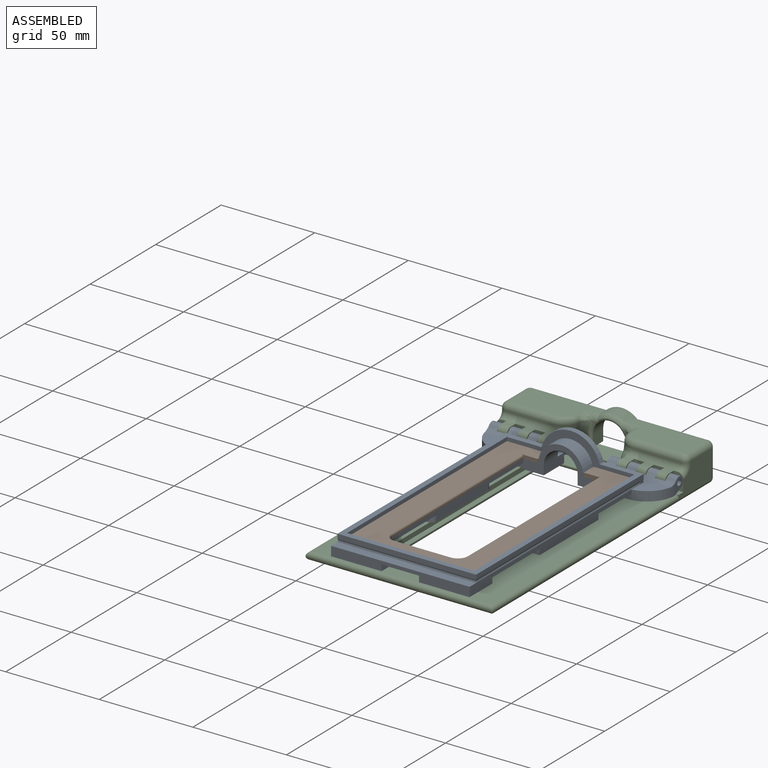
[diagram: assembled view]
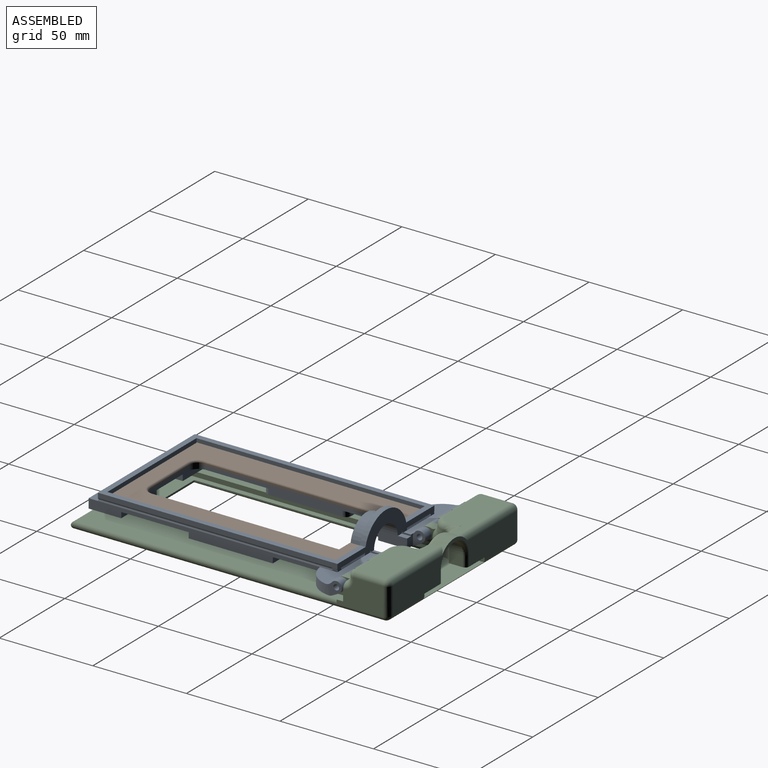
[diagram: assembled view, second angle]
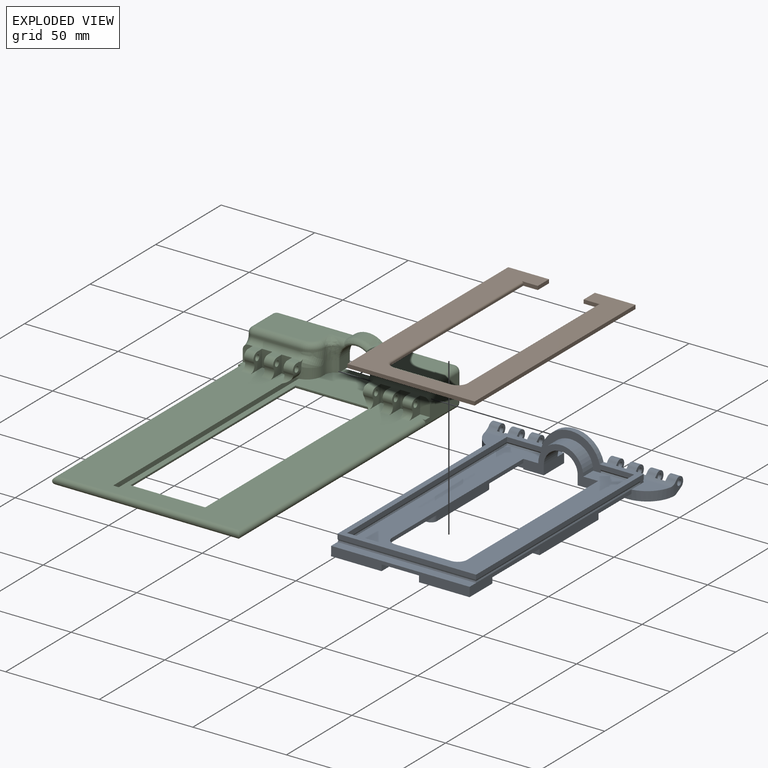
[diagram: exploded view]
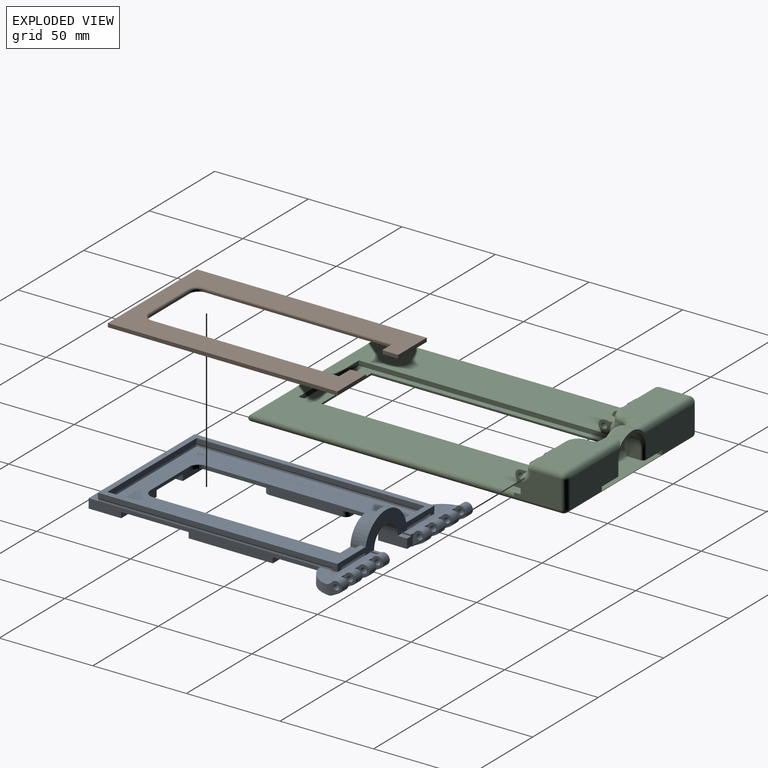
[diagram: exploded view, second angle]
ASSEMBLY  parts=3 mates=2
PART A: 151 faces, bbox 100x144.4x21.1 mm
  f0: plane 37.6x11.62mm, normal (0,0,1), area 161.3mm2, adj f13,f17,f27,f50,f80,f119,f143
  f1: cylinder r=16.05mm len=31.09mm, axis (0,1,0), area 127mm2, adj f114,f119,f127
  f2: cylinder r=16.05mm len=1.5mm, axis (0,1,0), area 0.4mm2, adj f119,f143,f144
  f3: plane 0.75x0.5mm, normal (0.95,0,-0.32), area 0.2mm2, adj f4,f119,f148
  f4: plane 0.75x0.5mm, normal (0.95,0,0.32), area 0.2mm2, adj f3,f119,f147
  f5: plane 0.75x0.5mm, normal (-0.95,0,-0.32), area 0.2mm2, adj f6,f119,f144
  f6: plane 0.75x0.5mm, normal (-0.95,0,0.32), area 0.2mm2, adj f5,f119,f143
  f7: plane 37.6x11.62mm, normal (0,0,1), area 161.3mm2, adj f14,f26,f33,f81,f119,f141
  f8: plane 122x68mm, normal (0,0,1), area 3925.6mm2, adj f18,f21,f29,f56,f63,f64,f65,f120
  f9: cylinder r=16.05mm len=1.5mm, axis (0,1,0), area 0.4mm2, adj f127,f139,f140
  f10: cylinder r=16.05mm len=1.5mm, axis (0,1,0), area 0.4mm2, adj f127,f145,f146
  f11: plane 122x2.5mm, normal (-1,0,0), area 305mm2, adj f20,f22,f114,f127
  f12: plane 122x2.5mm, normal (1,0,0), area 305mm2, adj f19,f22,f114,f127
  f13: plane 128x4mm, normal (1,0,0), area 323.7mm2, adj f0,f16,f23,f114,f119,f147,f148,f149
  f14: plane 128x0.75mm, normal (-0.95,0,0.32), area 101.1mm2, adj f7,f15,f57,f119,f129
  f15: plane 128x0.75mm, normal (-0.95,0,-0.32), area 101.1mm2, adj f14,f25,f119,f128
  f16: plane 125.5x0.75mm, normal (0.95,0,-0.32), area 98.9mm2, adj f13,f17,f128,f149
  f17: plane 125.5x0.75mm, normal (0.95,0,0.32), area 98.9mm2, adj f0,f16,f24,f129,f150
  f18: plane 125.25x0.75mm, normal (0.95,0,0.32), area 99mm2, adj f8,f19,f119,f133,f134,f138
  f19: plane 125.25x0.75mm, normal (0.95,0,-0.32), area 99mm2, adj f12,f18,f119,f132,f133,f138
  f20: plane 122.75x0.75mm, normal (-0.95,0,-0.32), area 96.8mm2, adj f11,f21,f136,f137,f146
  f21: plane 122.75x0.75mm, normal (-0.95,0,0.32), area 96.8mm2, adj f8,f20,f135,f136,f145
  f22: plane 68x2.5mm, normal (0,1,0), area 170mm2, adj f11,f12,f114,f130
  f23: plane 74x2.5mm, normal (0,-1,0), area 185mm2, adj f13,f25,f114,f128
  f24: plane 123.54x5mm, normal (1,0,0), area 434.3mm2, adj f17,f34,f52,f53,f60,f65,f66,f67
  f25: plane 128x2.5mm, normal (-1,0,0), area 320mm2, adj f15,f23,f114,f119
  f26: cylinder r=12.05mm len=5mm, axis (0,-1,0), area 3mm2, adj f7,f33,f116,f119
  f27: cylinder r=12.05mm len=5mm, axis (0,-1,0), area 3mm2, adj f0,f50,f117,f119
  f28: plane 5.76x4.45mm, normal (0,1,0), area 23.2mm2, adj f31,f50,f94,f113,f117,f118
  f29: cylinder r=12.05mm len=24.1mm, axis (0,-1,0), area 283.9mm2, adj f8,f63,f127
  f30: plane 40.9x14.75mm, normal (0,0,-1), area 525.8mm2, adj f31,f63,f68,f69,f80,f113
  f31: cylinder r=5mm len=40.95mm, axis (-1,0,0), area 64.7mm2, adj f28,f30,f39,f40,f41,f58,f79,f80
  f32: plane 5.76x4.45mm, normal (0,1,0), area 23.2mm2, adj f33,f51,f95,f112,f115,f116
  f33: cylinder r=5mm len=37.98mm, axis (-1,0,0), area 141.1mm2, adj f7,f26,f32,f43,f44,f45,f46,f78
  f34: plane 74x4.91mm, normal (0,0,1), area 363.6mm2, adj f24,f57,f60,f129
  f35: plane 5x3.31mm, normal (0,0.47,-0.88), area 18.8mm2, adj f43,f51,f78,f102
  f36: plane 5x3.31mm, normal (0,0.47,-0.88), area 18.8mm2, adj f44,f51,f101,f104
  f37: plane 5x3.31mm, normal (0,0.47,-0.88), area 18.8mm2, adj f45,f51,f98,f99
  f38: plane 5x3.31mm, normal (0,0.47,-0.88), area 18.8mm2, adj f46,f51,f95,f96
  f39: plane 5x3.31mm, normal (0,0.47,-0.88), area 18.8mm2, adj f31,f47,f93,f94
  f40: plane 5x3.31mm, normal (0,0.47,-0.88), area 18.8mm2, adj f31,f48,f90,f91
  f41: plane 5x3.31mm, normal (0,0.47,-0.88), area 18.8mm2, adj f31,f49,f87,f88
  f42: cylinder r=1.5mm len=5mm, axis (-1,0,0), area 47.1mm2, adj f78,f102
  f43: cylinder r=3mm len=5.65mm, axis (-1,0,0), area 53.2mm2, adj f33,f35,f78,f102
  f44: cylinder r=3mm len=5.65mm, axis (-1,0,0), area 53.2mm2, adj f33,f36,f101,f104
  f45: cylinder r=3mm len=5.65mm, axis (-1,0,0), area 53.2mm2, adj f33,f37,f98,f99
  f46: cylinder r=3mm len=5.65mm, axis (-1,0,0), area 53.2mm2, adj f33,f38,f95,f96
  f47: cylinder r=3mm len=5.65mm, axis (-1,0,0), area 53.2mm2, adj f39,f50,f93,f94
  f48: cylinder r=3mm len=5.65mm, axis (-1,0,0), area 53.2mm2, adj f40,f50,f90,f91
  f49: cylinder r=3mm len=5.65mm, axis (-1,0,0), area 53.2mm2, adj f41,f50,f87,f88
  f50: cylinder r=5mm len=37.98mm, axis (-1,0,0), area 141.1mm2, adj f0,f27,f28,f47,f48,f49,f62,f79
  f51: cylinder r=5mm len=40.95mm, axis (-1,0,0), area 64.7mm2, adj f32,f35,f36,f37,f38,f55,f78,f81
  f52: plane 27x17.41mm, normal (0,0,-1), area 470mm2, adj f24,f60,f65,f83
  f53: plane 45x17mm, normal (0,0,-1), area 761.1mm2, adj f24,f64,f67,f70,f122,f123
  f54: plane 27x17.41mm, normal (0,0,-1), area 470mm2, adj f57,f60,f65,f82
  f55: plane 40.9x14.75mm, normal (0,0,-1), area 525.8mm2, adj f51,f63,f72,f73,f81,f112
  f56: plane 100x5mm, normal (1,0,0), area 317mm2, adj f8,f59,f63,f75,f77,f121,f124,f125
  f57: plane 123.54x5mm, normal (-1,0,0), area 434.3mm2, adj f14,f34,f54,f59,f60,f65,f74,f75
  f58: plane 5x3.31mm, normal (0,0.47,-0.88), area 18.8mm2, adj f31,f62,f79,f85
  f59: plane 45x17mm, normal (0,0,-1), area 761.1mm2, adj f56,f57,f74,f76,f124,f125
  f60: plane 74x5mm, normal (0,-1,0), area 305mm2, adj f24,f34,f52,f54,f57,f82,f83,f84
  f61: cylinder r=1.5mm len=5mm, axis (-1,0,0), area 47.1mm2, adj f79,f85
  f62: cylinder r=3mm len=5.65mm, axis (-1,0,0), area 53.2mm2, adj f50,f58,f79,f85
  f63: plane 40x17.05mm, normal (0,-1,0), area 208.9mm2, adj f8,f29,f30,f55,f56,f64,f68,f72
  f64: plane 100x5mm, normal (-1,0,0), area 317mm2, adj f8,f53,f63,f66,f71,f120,f122,f123
  f65: plane 74x5mm, normal (0,1,0), area 217mm2, adj f8,f24,f52,f54,f57,f66,f77,f82
  f66: plane 39x22mm, normal (0,0,-1), area 619.3mm2, adj f24,f64,f65,f67,f120,f123
  f67: plane 14x3mm, normal (0,-1,0), area 42mm2, adj f24,f53,f66,f123
  f68: plane 3x1mm, normal (1,0,0), area 3mm2, adj f30,f63,f69,f71
  f69: plane 15x3mm, normal (0,-1,0), area 45mm2, adj f30,f68,f71,f80
  f70: plane 14x3mm, normal (0,1,0), area 42mm2, adj f24,f53,f71,f122
  f71: plane 28.13x17mm, normal (0,0,-1), area 427mm2, adj f24,f64,f68,f69,f70,f80,f122
  f72: plane 3x1mm, normal (-1,0,0), area 3mm2, adj f55,f63,f73,f75
  f73: plane 15x3mm, normal (0,-1,0), area 45mm2, adj f55,f72,f75,f81
  f74: plane 14x3mm, normal (0,1,0), area 42mm2, adj f57,f59,f75,f125
  f75: plane 28.13x17mm, normal (0,0,-1), area 427mm2, adj f56,f57,f72,f73,f74,f81,f125
  f76: plane 14x3mm, normal (0,-1,0), area 42mm2, adj f57,f59,f77,f124
  f77: plane 39x22mm, normal (0,0,-1), area 619.3mm2, adj f56,f57,f65,f76,f121,f124
  f78: plane 7.84x6mm, normal (-1,0,0), area 27mm2, adj f33,f35,f42,f43,f51,f81
  f79: plane 7.84x6mm, normal (1,0,0), area 27mm2, adj f31,f50,f58,f61,f62,f80
  f80: cylinder r=15mm len=15mm, axis (0,0,-1), area 115.7mm2, adj f0,f24,f30,f31,f50,f69,f71,f79
  f81: cylinder r=15mm len=15mm, axis (0,0,1), area 115.7mm2, adj f7,f33,f51,f55,f57,f73,f75,f78
  f82: plane 17.41x3.25mm, normal (1,0,0), area 56.6mm2, adj f54,f60,f65,f84
  f83: plane 17.41x3.25mm, normal (-1,0,0), area 56.6mm2, adj f52,f60,f65,f84
  f84: plane 20x17.41mm, normal (0,0,-1), area 348.2mm2, adj f60,f65,f82,f83
  f85: plane 7.94x6.5mm, normal (-1,0,0), area 30mm2, adj f31,f50,f58,f61,f62,f86
  f86: plane 5.76x5.5mm, normal (0,1,0), area 31.7mm2, adj f31,f50,f85,f87
  f87: plane 7.94x6.5mm, normal (1,0,0), area 30mm2, adj f31,f41,f49,f50,f86,f105
  f88: plane 7.94x6.5mm, normal (-1,0,0), area 30mm2, adj f31,f41,f49,f50,f89,f105
  f89: plane 5.76x5.5mm, normal (0,1,0), area 31.7mm2, adj f31,f50,f88,f90
  f90: plane 7.94x6.5mm, normal (1,0,0), area 30mm2, adj f31,f40,f48,f50,f89,f106
  f91: plane 7.94x6.5mm, normal (-1,0,0), area 30mm2, adj f31,f40,f48,f50,f92,f106
  f92: plane 5.76x5.5mm, normal (0,1,0), area 31.7mm2, adj f31,f50,f91,f93
  f93: plane 7.94x6.5mm, normal (1,0,0), area 30mm2, adj f31,f39,f47,f50,f92,f107
  f94: plane 7.94x6.5mm, normal (-1,0,0), area 30mm2, adj f28,f31,f39,f47,f50,f107
  f95: plane 7.94x6.5mm, normal (1,0,0), area 30mm2, adj f32,f33,f38,f46,f51,f108
  f96: plane 7.94x6.5mm, normal (-1,0,0), area 30mm2, adj f33,f38,f46,f51,f97,f108
  f97: plane 5.76x5.5mm, normal (0,1,0), area 31.7mm2, adj f33,f51,f96,f98
  f98: plane 7.94x6.5mm, normal (1,0,0), area 30mm2, adj f33,f37,f45,f51,f97,f109
  f99: plane 7.94x6.5mm, normal (-1,0,0), area 30mm2, adj f33,f37,f45,f51,f100,f109
  f100: plane 5.76x5.5mm, normal (0,1,0), area 31.7mm2, adj f33,f51,f99,f101
  f101: plane 7.94x6.5mm, normal (1,0,0), area 30mm2, adj f33,f36,f44,f51,f100,f110
  f102: plane 7.94x6.5mm, normal (1,0,0), area 30mm2, adj f33,f35,f42,f43,f51,f103
  f103: plane 5.76x5.5mm, normal (0,1,0), area 31.7mm2, adj f33,f51,f102,f104
  f104: plane 7.94x6.5mm, normal (-1,0,0), area 30mm2, adj f33,f36,f44,f51,f103,f110
  f105: cylinder r=1.5mm len=5mm, axis (-1,0,0), area 47.1mm2, adj f87,f88
  f106: cylinder r=1.5mm len=5mm, axis (-1,0,0), area 47.1mm2, adj f90,f91
  f107: cylinder r=1.5mm len=5mm, axis (-1,0,0), area 47.1mm2, adj f93,f94
  f108: cylinder r=1.5mm len=5mm, axis (-1,0,0), area 47.1mm2, adj f95,f96
  f109: cylinder r=1.5mm len=5mm, axis (-1,0,0), area 47.1mm2, adj f98,f99
  f110: cylinder r=1.5mm len=5mm, axis (-1,0,0), area 47.1mm2, adj f101,f104
  f111: cylinder r=9.05mm len=18.1mm, axis (0,-1,0), area 298.5mm2, adj f63,f112,f113,f119
  f112: plane 15.5x5mm, normal (1,0,0), area 77.5mm2, adj f32,f51,f55,f63,f111,f115
  f113: plane 15.5x5mm, normal (-1,0,0), area 77.5mm2, adj f28,f30,f31,f63,f111,f118
  f114: plane 128x74mm, normal (0,0,1), area 1082.7mm2, adj f1,f11,f12,f13,f22,f23,f25,f119
  f115: plane 5x2.97mm, normal (0,0,1), area 14.9mm2, adj f32,f112,f116,f119
  f116: plane 5x0.82mm, normal (1,0,0), area 4.1mm2, adj f26,f32,f115,f119
  f117: plane 5x0.82mm, normal (-1,0,0), area 4.1mm2, adj f27,f28,f118,f119
  f118: plane 5x2.97mm, normal (0,0,1), area 14.9mm2, adj f28,f113,f117,f119
  f119: plane 74x16.05mm, normal (0,1,0), area 390.3mm2, adj f0,f1,f2,f3,f4,f5,f6,f7
  f120: cylinder r=5mm len=5mm, axis (0,0,-1), area 15.7mm2, adj f8,f64,f65,f66
  f121: cylinder r=5mm len=5mm, axis (0,0,1), area 15.7mm2, adj f8,f56,f65,f77
  f122: cylinder r=3mm len=3mm, axis (0,0,-1), area 14.1mm2, adj f53,f64,f70,f71
  f123: cylinder r=3mm len=3mm, axis (0,0,1), area 14.1mm2, adj f53,f64,f66,f67
  f124: cylinder r=3mm len=3mm, axis (0,0,-1), area 14.1mm2, adj f56,f59,f76,f77
  f125: cylinder r=3mm len=3mm, axis (0,0,1), area 14.1mm2, adj f56,f59,f74,f75
  f126: cylinder r=16.05mm len=1.5mm, axis (0,1,0), area 0.4mm2, adj f119,f141,f142
  f127: plane 68x16.05mm, normal (0,-1,0), area 267.6mm2, adj f1,f8,f9,f10,f11,f12,f29,f114
  f128: plane 74x0.75mm, normal (0,-0.95,-0.32), area 58.3mm2, adj f15,f16,f23,f129
  f129: plane 74x0.75mm, normal (0,-0.95,0.32), area 58.3mm2, adj f14,f17,f34,f128
  f130: plane 68x0.75mm, normal (0,0.95,-0.32), area 53.8mm2, adj f22,f131,f132,f137
  f131: plane 68x0.75mm, normal (0,0.95,0.32), area 53.8mm2, adj f8,f130,f134,f135
  f132: plane 0.75x0.25mm, normal (-1,0,0), area 0.1mm2, adj f19,f130,f133
  f133: plane 1.5x0.25mm, normal (0,1,0), area 0.2mm2, adj f18,f19,f132,f134
  f134: plane 0.75x0.25mm, normal (-1,0,0), area 0.1mm2, adj f18,f131,f133
  f135: plane 0.75x0.25mm, normal (1,0,0), area 0.1mm2, adj f21,f131,f136
  f136: plane 1.5x0.25mm, normal (0,1,0), area 0.2mm2, adj f20,f21,f135,f137
  f137: plane 0.75x0.25mm, normal (1,0,0), area 0.1mm2, adj f20,f130,f136
  f138: plane 3x1.5mm, normal (-1,0,0), area 3.8mm2, adj f18,f19,f139,f140,f141,f142
  f139: plane 18.02x0.75mm, normal (0,-0.83,-0.55), area 16.2mm2, adj f9,f127,f138,f140
  f140: plane 17.97x0.75mm, normal (0,-0.83,0.55), area 16.2mm2, adj f8,f9,f138,f139
  f141: plane 17.97x0.75mm, normal (0,0.83,0.55), area 16.2mm2, adj f7,f126,f138,f142
  f142: plane 18.02x0.75mm, normal (0,0.83,-0.55), area 16.2mm2, adj f119,f126,f138,f141
  f143: plane 18.22x0.75mm, normal (0,0.83,0.55), area 16.3mm2, adj f0,f2,f6,f144
  f144: plane 18.27x0.75mm, normal (0,0.83,-0.55), area 16.3mm2, adj f2,f5,f119,f143
  f145: plane 18.22x0.75mm, normal (0,-0.83,0.55), area 16.3mm2, adj f8,f10,f21,f146
  f146: plane 18.27x0.75mm, normal (0,-0.83,-0.55), area 16.3mm2, adj f10,f20,f127,f145
  f147: plane 0.75x0.5mm, normal (0,0.83,0.55), area 0.1mm2, adj f4,f13,f148
  f148: plane 0.75x0.5mm, normal (0,0.83,-0.55), area 0.1mm2, adj f3,f13,f147
  f149: plane 0.75x0.5mm, normal (0,-0.83,-0.55), area 0.1mm2, adj f13,f16,f150
  f150: plane 0.75x0.5mm, normal (0,-0.83,0.55), area 0.1mm2, adj f13,f17,f149
PART B: 21 faces, bbox 68x122.7x2 mm
  f0: plane 8.5x2mm, normal (-1,0,0), area 17mm2, adj f3,f4,f10,f14
  f1: plane 122.75x2mm, normal (1,0,0), area 245.5mm2, adj f3,f10,f11,f14
  f2: plane 122.75x2mm, normal (-1,0,0), area 245.5mm2, adj f3,f10,f11,f15
  f3: plane 122.75x68mm, normal (0,0,-1), area 3949.1mm2, adj f0,f1,f2,f4,f5,f6,f7,f8
  f4: plane 8.75x2mm, normal (0,-1,0), area 15.7mm2, adj f0,f3,f5,f10,f16
  f5: plane 100x1mm, normal (-1,0,0), area 100mm2, adj f3,f4,f12,f16
  f6: plane 30x1mm, normal (0,1,0), area 30mm2, adj f3,f12,f13,f18
  f7: plane 100x1mm, normal (1,0,0), area 100mm2, adj f3,f8,f13,f19
  f8: plane 8.75x2mm, normal (0,-1,0), area 15.7mm2, adj f3,f7,f9,f10,f19
  f9: plane 8.5x2mm, normal (1,0,0), area 17mm2, adj f3,f8,f10,f15
  f10: plane 122.75x68mm, normal (0,0,1), area 3701.9mm2, adj f0,f1,f2,f4,f8,f9,f11,f14
  f11: plane 68x2mm, normal (0,-1,0), area 136mm2, adj f1,f2,f3,f10
  f12: cylinder r=5mm len=5mm, axis (0,0,1), area 7.9mm2, adj f3,f5,f6,f17
  f13: cylinder r=5mm len=5mm, axis (0,0,1), area 7.9mm2, adj f3,f6,f7,f20
  f14: plane 21.75x2mm, normal (0,1,0), area 43.5mm2, adj f0,f1,f3,f10
  f15: plane 21.75x2mm, normal (0,1,0), area 43.5mm2, adj f2,f3,f9,f10
  f16: cylinder r=1mm len=100mm, axis (0,1,0), area 157.1mm2, adj f4,f5,f10,f17
  f17: torus R=6mm, axis (0,0,1), area 13.2mm2, adj f10,f12,f16,f18
  f18: cylinder r=1mm len=30mm, axis (1,0,0), area 47.1mm2, adj f6,f10,f17,f20
  f19: cylinder r=1mm len=100mm, axis (0,-1,0), area 157.1mm2, adj f7,f8,f10,f20
  f20: torus R=6mm, axis (0,0,1), area 13.2mm2, adj f10,f13,f18,f19
PART C: 138 faces, bbox 100.3x170.3x25.8 mm
  f0: plane 0.08x0mm, normal (-1,0,0), area 0mm2, adj f75,f127
  f1: plane 12.11x2.29mm, normal (1,0,0), area 14mm2, adj f10,f78,f79,f80,f122,f123
  f2: plane 0.92x0.79mm, normal (0,-1,0), area 0.3mm2, adj f92,f100,f128
  f3: plane 40.28x16mm, normal (0,0,1), area 528mm2, adj f6,f86,f87,f88,f89,f116,f118
  f4: plane 24.82x13.95mm, normal (0,0,-1), area 276.8mm2, adj f7,f38,f73,f74,f82,f98,f102,f126
  f5: plane 40.28x16mm, normal (0,0,1), area 528mm2, adj f6,f91,f92,f93,f94,f108,f109
  f6: cylinder r=12.05mm len=19.62mm, axis (0,1,0), area 112.8mm2, adj f3,f5,f82,f90,f109,f116
  f7: plane 7x6mm, normal (-1,0,0), area 42mm2, adj f4,f9,f98,f102
  f8: plane 7x6mm, normal (1,0,0), area 42mm2, adj f9,f10,f95,f104
  f9: cylinder r=9.05mm len=18.1mm, axis (0,1,0), area 195.5mm2, adj f7,f8,f96,f97,f99,f100,f101,f103
  f10: plane 24.82x13.95mm, normal (0,0,-1), area 276.8mm2, adj f1,f8,f36,f78,f82,f95,f104,f122
  f11: cylinder r=3mm len=26.06mm, axis (-1,0,0), area 115.9mm2, adj f12,f23,f24,f25,f48,f49,f50,f51
  f12: plane 26.06x1mm, normal (0,-1,0), area 26.1mm2, adj f11,f81,f86,f120
  f13: plane 25x15mm, normal (1,0,0), area 298.7mm2, adj f26,f29,f41,f64,f105,f106,f108,f111
  f14: cylinder r=3mm len=5mm, axis (-1,0,0), area 31.4mm2, adj f20,f63,f65,f136
  f15: cylinder r=3mm len=5mm, axis (-1,0,0), area 31.4mm2, adj f21,f60,f61,f133
  f16: cylinder r=3mm len=5mm, axis (-1,0,0), area 31.4mm2, adj f22,f57,f58,f131,f132
  f17: cylinder r=3mm len=5mm, axis (-1,0,0), area 31.4mm2, adj f23,f55,f56,f130,f137
  f18: cylinder r=3mm len=5mm, axis (-1,0,0), area 31.4mm2, adj f24,f52,f53,f135
  f19: cylinder r=3mm len=5mm, axis (-1,0,0), area 31.4mm2, adj f25,f49,f50,f134
  f20: plane 5x3mm, normal (0,0,1), area 15mm2, adj f14,f28,f63,f65
  f21: plane 5x3mm, normal (0,0,1), area 15mm2, adj f15,f28,f60,f61
  f22: plane 5.05x3.05mm, normal (0,0,1), area 13.4mm2, adj f16,f28,f57,f58,f76
  f23: plane 5.05x3.05mm, normal (0,0,1), area 13.4mm2, adj f11,f17,f55,f56,f79
  f24: plane 5x3mm, normal (0,0,1), area 15mm2, adj f11,f18,f52,f53
  f25: plane 5x3mm, normal (0,0,1), area 15mm2, adj f11,f19,f49,f50
  f26: plane 2x2mm, normal (0,-1,0), area 0.9mm2, adj f13,f29,f41
  f27: plane 2x2mm, normal (0,-1,0), area 0.9mm2, adj f29,f35,f43
  f28: cylinder r=3mm len=26.06mm, axis (-1,0,0), area 115.9mm2, adj f20,f21,f22,f40,f58,f59,f60,f61
  f29: plane 143.5x100mm, normal (0,0,1), area 7278mm2, adj f13,f26,f27,f35,f36,f37,f38,f41
  f30: plane 126x0.5mm, normal (-1,0,0), area 63mm2, adj f31,f33,f39,f44
  f31: plane 40x0.5mm, normal (0,-1,0), area 20mm2, adj f30,f32,f39,f45
  f32: plane 126x0.5mm, normal (1,0,0), area 63mm2, adj f31,f33,f39,f47
  f33: plane 40x0.5mm, normal (0,1,0), area 20mm2, adj f30,f32,f39,f46
  f34: plane 165x96mm, normal (0,0,-1), area 10464mm2, adj f41,f42,f43,f44,f45,f46,f47,f113
  f35: plane 25x15mm, normal (-1,0,0), area 298.7mm2, adj f27,f29,f43,f48,f115,f118,f120,f121
  f36: plane 162x2.5mm, normal (1,0,0), area 404.8mm2, adj f10,f29,f37,f39,f82,f113,f130
  f37: plane 46x2.5mm, normal (0,1,0), area 115mm2, adj f29,f36,f38,f39
  f38: plane 162x2.5mm, normal (-1,0,0), area 404.8mm2, adj f4,f29,f37,f39,f82,f113,f131
  f39: plane 161.6x46mm, normal (0,0,1), area 2393.5mm2, adj f30,f31,f32,f33,f36,f37,f38,f113
  f40: plane 26.06x1mm, normal (0,-1,0), area 26.1mm2, adj f28,f75,f91,f106
  f41: cylinder r=2mm len=167.01mm, axis (0,-1,0), area 966.2mm2, adj f13,f26,f29,f34,f42,f112
  f42: cylinder r=2mm len=96mm, axis (-1,0,0), area 603.2mm2, adj f29,f34,f41,f43
  f43: cylinder r=2mm len=167.01mm, axis (0,1,0), area 966.2mm2, adj f27,f29,f34,f35,f42,f114
  f44: cylinder r=1mm len=128mm, axis (0,1,0), area 199.5mm2, adj f30,f34,f45,f46
  f45: cylinder r=1mm len=42mm, axis (-1,0,0), area 64.4mm2, adj f31,f34,f44,f47
  f46: cylinder r=1mm len=42mm, axis (1,0,0), area 64.4mm2, adj f33,f34,f44,f47
  f47: cylinder r=1mm len=128mm, axis (0,-1,0), area 199.5mm2, adj f32,f34,f45,f46
  f48: plane 9.1x5.31mm, normal (0,-1,0), area 45.5mm2, adj f11,f29,f35,f49,f121
  f49: plane 9.04x8.7mm, normal (-1,0,0), area 47.8mm2, adj f11,f19,f25,f29,f48,f66,f134
  f50: plane 9.04x8.7mm, normal (1,0,0), area 47.8mm2, adj f11,f19,f25,f29,f51,f66,f134
  f51: plane 9.04x5.5mm, normal (0,-1,0), area 49.7mm2, adj f11,f29,f50,f52
  f52: plane 9.04x8.7mm, normal (-1,0,0), area 47.8mm2, adj f11,f18,f24,f29,f51,f67,f135
  f53: plane 9.04x8.7mm, normal (1,0,0), area 47.8mm2, adj f11,f18,f24,f29,f54,f67,f135
  f54: plane 9.04x5.5mm, normal (0,-1,0), area 49.7mm2, adj f11,f29,f53,f55
  f55: plane 9.04x8.7mm, normal (-1,0,0), area 47.8mm2, adj f11,f17,f23,f29,f54,f68,f137
  f56: plane 8.44x4.81mm, normal (1,0,0), area 18.5mm2, adj f17,f23,f68,f78,f79,f84,f130
  f57: plane 8.44x4.81mm, normal (-1,0,0), area 18.5mm2, adj f16,f22,f69,f74,f76,f85,f131
  f58: plane 9.04x8.7mm, normal (1,0,0), area 47.8mm2, adj f16,f22,f28,f29,f59,f69,f132
  f59: plane 9.04x5.5mm, normal (0,-1,0), area 49.7mm2, adj f28,f29,f58,f60
  f60: plane 9.04x8.7mm, normal (-1,0,0), area 47.8mm2, adj f15,f21,f28,f29,f59,f70,f133
  f61: plane 9.04x8.7mm, normal (1,0,0), area 47.8mm2, adj f15,f21,f28,f29,f62,f70,f133
  f62: plane 9.04x5.5mm, normal (0,-1,0), area 49.7mm2, adj f28,f29,f61,f63
  f63: plane 9.04x8.7mm, normal (-1,0,0), area 47.8mm2, adj f14,f20,f28,f29,f62,f71,f136
  f64: plane 9.1x5.31mm, normal (0,-1,0), area 45.5mm2, adj f13,f28,f29,f65,f105
  f65: plane 9.04x8.7mm, normal (1,0,0), area 47.8mm2, adj f14,f20,f28,f29,f64,f71,f136
  f66: cylinder r=1.5mm len=5mm, axis (-1,0,0), area 47.1mm2, adj f49,f50
  f67: cylinder r=1.5mm len=5mm, axis (-1,0,0), area 47.1mm2, adj f52,f53
  f68: cylinder r=1.5mm len=5mm, axis (-1,0,0), area 47.1mm2, adj f55,f56,f130
  f69: cylinder r=1.5mm len=5mm, axis (-1,0,0), area 47.1mm2, adj f57,f58,f131
  f70: cylinder r=1.5mm len=5mm, axis (-1,0,0), area 47.1mm2, adj f60,f61
  f71: cylinder r=1.5mm len=5mm, axis (-1,0,0), area 47.1mm2, adj f63,f65
  f72: plane 0.08x0mm, normal (1,0,0), area 0mm2, adj f81,f123
  f73: plane 12.11x2.29mm, normal (-1,0,0), area 14mm2, adj f4,f74,f76,f77,f126,f127
  f74: cylinder r=8mm len=10mm, axis (0,0,-1), area 59.1mm2, adj f4,f57,f73,f85,f131
  f75: cylinder r=8mm len=7.94mm, axis (0,0,-1), area 11.6mm2, adj f0,f40,f77,f93,f128
  f76: torus R=11mm, axis (1,0,0), area 33.4mm2, adj f22,f28,f57,f73,f77,f85
  f77: bspline ~8.11x7.31mm, area 28.8mm2, adj f28,f73,f75,f76
  f78: cylinder r=8mm len=10mm, axis (0,0,-1), area 59.1mm2, adj f1,f10,f56,f84,f130
  f79: torus R=11mm, axis (-1,0,0), area 33.4mm2, adj f1,f11,f23,f56,f80,f84
  f80: bspline ~8.58x7.46mm, area 28.8mm2, adj f1,f11,f79,f81
  f81: cylinder r=8mm len=7.94mm, axis (0,0,1), area 11.6mm2, adj f12,f72,f80,f87,f124
  f82: plane 94x19.05mm, normal (0,1,0), area 1015mm2, adj f4,f6,f10,f36,f38,f102,f103,f104
  f83: plane 0.92x0.79mm, normal (0,-1,0), area 0.3mm2, adj f89,f96,f124
  f84: bspline ~7.98x7.27mm, area 15.8mm2, adj f56,f78,f79
  f85: bspline ~7.98x7.27mm, area 15.8mm2, adj f57,f74,f76
  f86: cylinder r=3mm len=26.06mm, axis (-1,0,0), area 122.8mm2, adj f3,f12,f87,f119
  f87: torus R=5mm, axis (0,0,1), area 46.6mm2, adj f3,f81,f86,f88
  f88: cylinder r=3mm len=8mm, axis (0,1,0), area 18.4mm2, adj f3,f87,f125
  f89: cylinder r=3mm len=9.82mm, axis (1,0,0), area 20.3mm2, adj f3,f83,f90,f97,f99,f125
  f90: torus R=9.05mm, axis (0,-1,0), area 44.4mm2, adj f6,f89,f92,f99
  f91: cylinder r=3mm len=26.06mm, axis (-1,0,0), area 122.8mm2, adj f5,f40,f93,f107
  f92: cylinder r=3mm len=9.82mm, axis (1,0,0), area 20.3mm2, adj f2,f5,f90,f99,f101,f129
  f93: torus R=5mm, axis (0,0,1), area 46.6mm2, adj f5,f75,f91,f94
  f94: cylinder r=3mm len=8mm, axis (0,1,0), area 18.4mm2, adj f5,f93,f129
  f95: cylinder r=1mm len=6mm, axis (0,0,-1), area 7.3mm2, adj f8,f10,f96,f122
  f96: torus R=10.05mm, axis (0,-1,0), area 10.3mm2, adj f9,f83,f95,f97,f123
  f97: bspline ~2.54x2.51mm, area 2.8mm2, adj f9,f89,f96,f99
  f98: cylinder r=1mm len=6mm, axis (0,0,1), area 7.3mm2, adj f4,f7,f100,f126
  f99: torus R=10.05mm, axis (0,-1,0), area 25.7mm2, adj f9,f89,f90,f92,f97,f101
  f100: torus R=10.05mm, axis (0,-1,0), area 10.3mm2, adj f2,f9,f98,f101,f127
  f101: bspline ~2.54x2.51mm, area 2.8mm2, adj f9,f92,f99,f100
  f102: cylinder r=2mm len=6mm, axis (0,0,-1), area 18.8mm2, adj f4,f7,f82,f103
  f103: torus R=11.05mm, axis (0,-1,0), area 96.5mm2, adj f9,f82,f102,f104
  f104: cylinder r=2mm len=6mm, axis (0,0,1), area 18.8mm2, adj f8,f10,f82,f103
  f105: torus R=6mm, axis (1,0,0), area 28mm2, adj f13,f28,f64,f106
  f106: cylinder r=3mm len=3mm, axis (0,0,-1), area 4.7mm2, adj f13,f40,f105,f107
  f107: sphere r=3mm, area 19.3mm2, adj f91,f106,f108
  f108: cylinder r=3mm len=16mm, axis (0,-1,0), area 75.4mm2, adj f5,f13,f107,f110
  f109: cylinder r=3mm len=40.28mm, axis (1,0,0), area 182.5mm2, adj f5,f6,f82,f110
  f110: sphere r=3mm, area 9mm2, adj f108,f109,f111
  f111: cylinder r=3mm len=15mm, axis (0,0,1), area 68.3mm2, adj f13,f82,f110,f112
  f112: bspline ~3.16x3mm, area 6.5mm2, adj f41,f111,f113
  f113: cylinder r=3mm len=96mm, axis (-1,0,0), area 375.4mm2, adj f34,f36,f38,f39,f82,f112,f114
  f114: bspline ~3.16x3mm, area 6.5mm2, adj f43,f113,f115
  f115: cylinder r=3mm len=15mm, axis (0,0,-1), area 68.3mm2, adj f35,f82,f114,f117
  f116: cylinder r=3mm len=40.28mm, axis (1,0,0), area 182.5mm2, adj f3,f6,f82,f117
  f117: sphere r=3mm, area 19.3mm2, adj f115,f116,f118
  f118: cylinder r=3mm len=16mm, axis (0,1,0), area 75.4mm2, adj f3,f35,f117,f119
  f119: sphere r=3mm, area 19.3mm2, adj f86,f118,f120
  f120: cylinder r=3mm len=3mm, axis (0,0,1), area 4.7mm2, adj f12,f35,f119,f121
  f121: torus R=6mm, axis (1,0,0), area 28mm2, adj f11,f35,f48,f120
  f122: cylinder r=5mm len=6mm, axis (0,0,-1), area 36.7mm2, adj f1,f10,f95,f123
  f123: bspline ~8.08x5.64mm, area 40.8mm2, adj f1,f72,f96,f122,f124
  f124: cylinder r=5mm len=5mm, axis (0,0,1), area 7.2mm2, adj f81,f83,f123,f125
  f125: bspline ~8x8mm, area 15.6mm2, adj f88,f89,f124
  f126: cylinder r=5mm len=6mm, axis (0,0,1), area 36.7mm2, adj f4,f73,f98,f127
  f127: bspline ~8.08x5.64mm, area 40.8mm2, adj f0,f73,f100,f126,f128
  f128: cylinder r=5mm len=5mm, axis (0,0,1), area 7.2mm2, adj f2,f75,f127,f129
  f129: bspline ~8x8mm, area 15.6mm2, adj f92,f94,f128
  f130: cylinder r=5mm len=8.7mm, axis (0,-1,0), area 43.8mm2, adj f17,f36,f56,f68,f78,f137
  f131: cylinder r=5mm len=8.7mm, axis (0,-1,0), area 43.8mm2, adj f16,f38,f57,f69,f74,f132
  f132: cylinder r=3mm len=4.98mm, axis (-1,0,0), area 20.7mm2, adj f16,f29,f58,f131
  f133: cylinder r=3mm len=5mm, axis (-1,0,0), area 31.4mm2, adj f15,f29,f60,f61
  f134: cylinder r=3mm len=5mm, axis (-1,0,0), area 31.4mm2, adj f19,f29,f49,f50
  f135: cylinder r=3mm len=5mm, axis (-1,0,0), area 31.4mm2, adj f18,f29,f52,f53
  f136: cylinder r=3mm len=5mm, axis (-1,0,0), area 31.4mm2, adj f14,f29,f63,f65
  f137: cylinder r=3mm len=4.98mm, axis (-1,0,0), area 20.7mm2, adj f17,f29,f55,f130
PLACE A rot(axis=(-1,0,0),0.1deg) t=(-4.85,0.64,1.21)mm
PLACE B rot(axis=(-1,0,0),0.1deg) t=(-4.85,0.61,-18.79)mm
PLACE C t=(-5.1,-5.34,1.11)mm fixed
MATE revolute A.f42 <-> C.f14  axis (1,0,0) through (-49.85,56.66,11.11)mm
MATE fastened A.f120 <-> B.f17  axis (0,0,1) through (10.15,-62.34,11.31)mm
